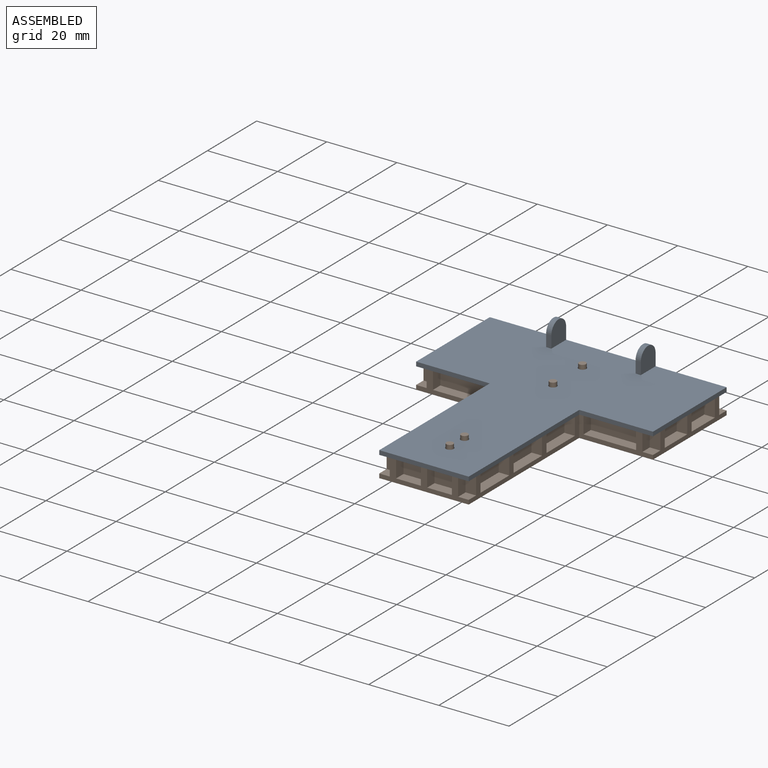
[diagram: assembled view]
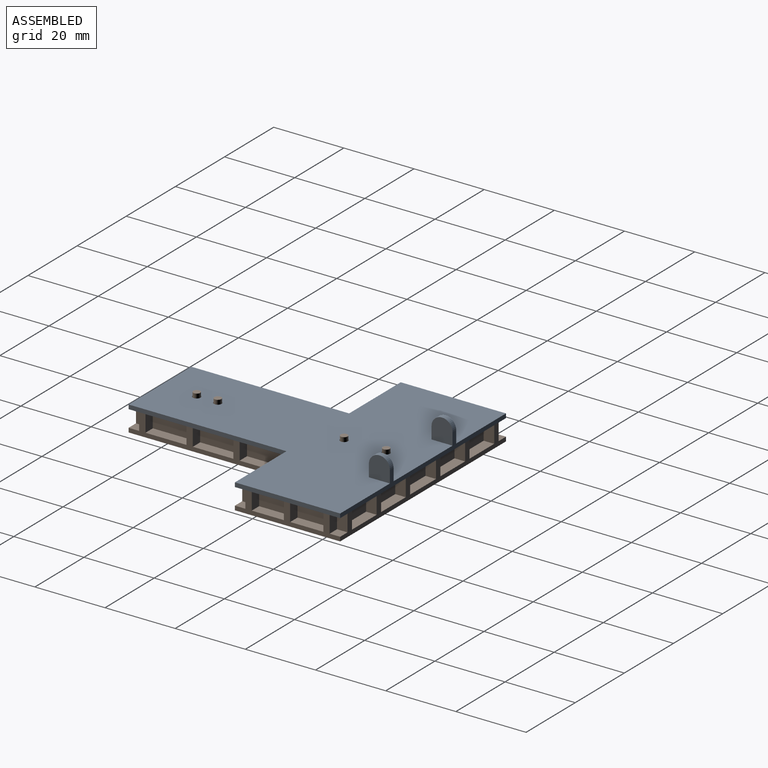
[diagram: assembled view, second angle]
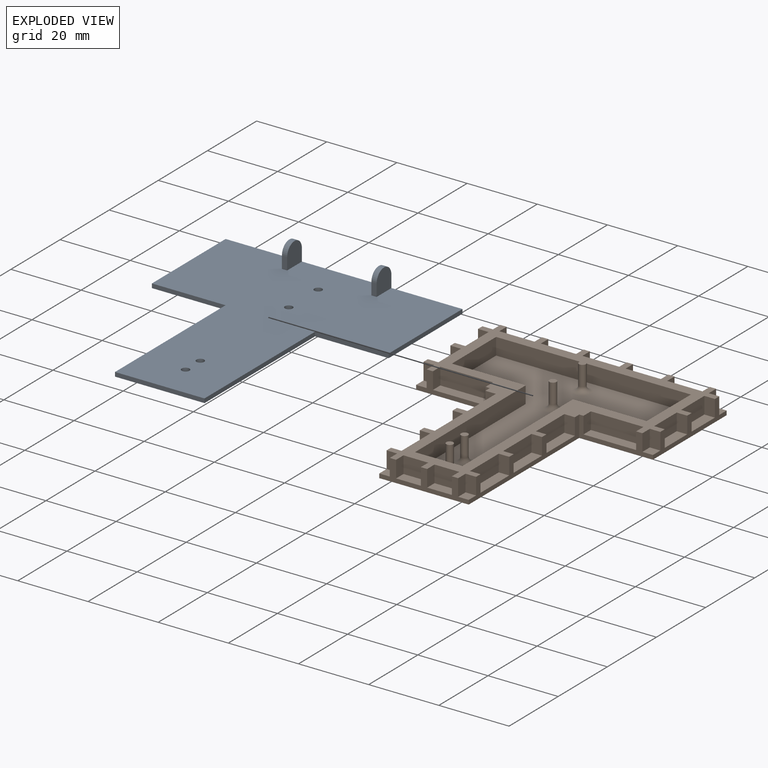
[diagram: exploded view]
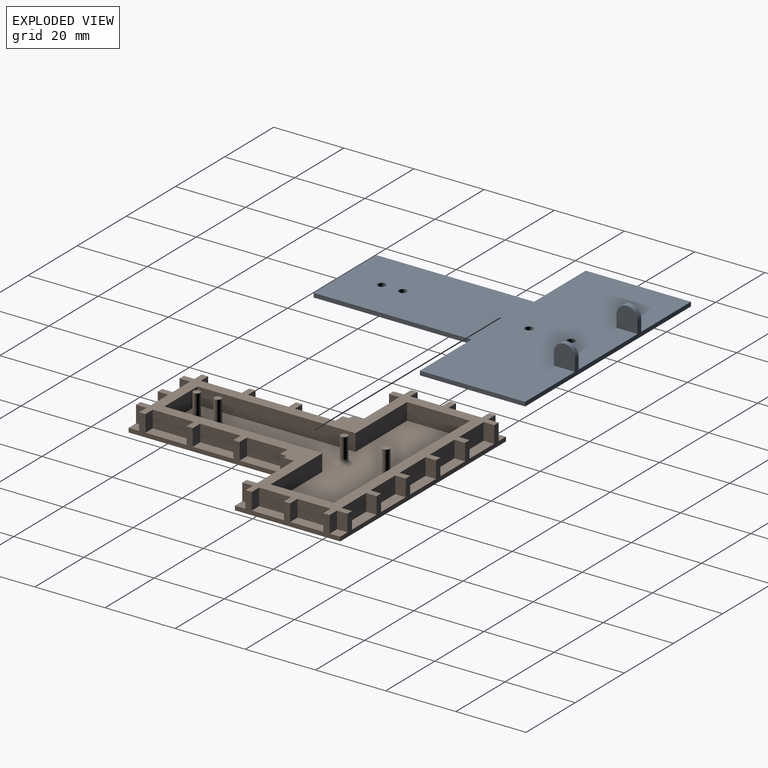
[diagram: exploded view, second angle]
ASSEMBLY  parts=2 mates=3
PART A: 22 faces, bbox 67.5x75x7.7 mm
  f0: plane 75x67.5mm, normal (0,0,1), area 3139.3mm2, adj f1,f2,f3,f4,f5,f6,f7,f8
  f1: plane 25.5x1.2mm, normal (0,-1,0), area 30.6mm2, adj f0,f2,f8,f9
  f2: plane 45x1.2mm, normal (1,0,0), area 54mm2, adj f0,f1,f3,f9
  f3: plane 21x1.2mm, normal (0,-1,0), area 25.2mm2, adj f0,f2,f4,f9
  f4: plane 30x1.2mm, normal (1,0,0), area 36mm2, adj f0,f3,f5,f9
  f5: plane 67.5x4.65mm, normal (0,1,0), area 91.3mm2, adj f0,f4,f6,f9,f10,f12,f13,f14
  f6: plane 30x1.2mm, normal (-1,0,0), area 36mm2, adj f0,f5,f7,f9
  f7: plane 21x1.2mm, normal (0,-1,0), area 25.2mm2, adj f0,f6,f8,f9
  f8: plane 45x1.2mm, normal (-1,0,0), area 54mm2, adj f0,f1,f7,f9
  f9: plane 75x67.5mm, normal (0,0,-1), area 3157.3mm2, adj f1,f2,f3,f4,f5,f6,f7,f8
  f10: cylinder r=3mm len=6mm, axis (-1,0,0), area 14.1mm2, adj f5,f11,f12,f13
  f11: plane 3.45x1.5mm, normal (0,-1,0), area 5.2mm2, adj f0,f10,f12,f13
  f12: plane 6.45x6mm, normal (1,0,0), area 34.8mm2, adj f0,f5,f10,f11
  f13: plane 6.45x6mm, normal (-1,0,0), area 34.8mm2, adj f0,f5,f10,f11
  f14: cylinder r=3mm len=6mm, axis (1,0,0), area 14.1mm2, adj f5,f15,f16,f17
  f15: plane 3.45x1.5mm, normal (0,-1,0), area 5.2mm2, adj f0,f14,f16,f17
  f16: plane 6.45x6mm, normal (-1,0,0), area 34.8mm2, adj f0,f5,f14,f15
  f17: plane 6.45x6mm, normal (1,0,0), area 34.8mm2, adj f0,f5,f14,f15
  f18: cylinder r=1.1mm len=2.2mm, axis (0,0,1), area 8.3mm2, adj f0,f9
  f19: cylinder r=1.1mm len=2.2mm, axis (0,0,1), area 8.3mm2, adj f0,f9
  f20: cylinder r=1.1mm len=2.2mm, axis (0,0,1), area 8.3mm2, adj f0,f9
  f21: cylinder r=1.1mm len=2.2mm, axis (0,0,1), area 8.3mm2, adj f0,f9
PART B: 125 faces, bbox 67.5x75x8.4 mm
  f0: plane 75x67.5mm, normal (0,0,1), area 907.2mm2, adj f1,f2,f3,f4,f5,f6,f7,f8
  f1: plane 25.5x6mm, normal (0,-1,0), area 56.5mm2, adj f0,f2,f8,f9,f10,f12,f13,f14
  f2: plane 45x6mm, normal (1,0,0), area 88.6mm2, adj f0,f1,f3,f9,f18,f20,f21,f22
  f3: plane 21x6mm, normal (0,-1,0), area 39.6mm2, adj f0,f2,f4,f9,f30,f32,f33,f89
  f4: plane 30x6mm, normal (1,0,0), area 61.9mm2, adj f0,f3,f5,f9,f34,f35,f37,f38
  f5: plane 67.5x6mm, normal (0,1,0), area 132.8mm2, adj f0,f4,f6,f9,f42,f43,f45,f46
  f6: plane 30x6mm, normal (-1,0,0), area 61.9mm2, adj f0,f5,f7,f9,f62,f63,f65,f66
  f7: plane 21x6mm, normal (0,-1,0), area 39.6mm2, adj f0,f6,f8,f9,f70,f72,f73,f98
  f8: plane 45x6mm, normal (-1,0,0), area 88.6mm2, adj f0,f1,f7,f9,f74,f76,f77,f78
  f9: plane 75x67.5mm, normal (0,0,-1), area 3172.5mm2, adj f1,f2,f3,f4,f5,f6,f7,f8
  f10: plane 4.8x3mm, normal (-1,0,0), area 14.4mm2, adj f0,f1,f11,f13
  f11: plane 7.05x4.8mm, normal (0,-1,0), area 33.8mm2, adj f0,f10,f12,f13
  f12: plane 4.8x3mm, normal (1,0,0), area 14.4mm2, adj f0,f1,f11,f13
  f13: plane 7.05x3mm, normal (0,0,1), area 21.1mm2, adj f1,f10,f11,f12
  f14: plane 4.8x3mm, normal (1,0,0), area 14.4mm2, adj f0,f1,f15,f17
  f15: plane 7.05x4.8mm, normal (0,-1,0), area 33.8mm2, adj f0,f14,f16,f17
  f16: plane 4.8x3mm, normal (-1,0,0), area 14.4mm2, adj f0,f1,f15,f17
  f17: plane 7.05x3mm, normal (0,0,1), area 21.1mm2, adj f1,f14,f15,f16
  f18: plane 4.8x3mm, normal (0,1,0), area 14.4mm2, adj f0,f2,f19,f21
  f19: plane 11.7x4.8mm, normal (1,0,0), area 56.2mm2, adj f0,f18,f20,f21
  f20: plane 4.8x3mm, normal (0,-1,0), area 14.4mm2, adj f0,f2,f19,f21
  f21: plane 11.7x3mm, normal (0,0,1), area 35.1mm2, adj f2,f18,f19,f20
  f22: plane 4.8x3mm, normal (0,1,0), area 14.4mm2, adj f0,f2,f23,f25
  f23: plane 11.55x4.8mm, normal (1,0,0), area 55.4mm2, adj f0,f22,f24,f25
  f24: plane 4.8x3mm, normal (0,-1,0), area 14.4mm2, adj f0,f2,f23,f25
  f25: plane 11.55x3mm, normal (0,0,1), area 34.6mm2, adj f2,f22,f23,f24
  f26: plane 4.8x3mm, normal (0,1,0), area 14.4mm2, adj f0,f2,f27,f29
  f27: plane 11.55x4.8mm, normal (1,0,0), area 55.4mm2, adj f0,f26,f28,f29
  f28: plane 4.8x3mm, normal (0,-1,0), area 14.4mm2, adj f0,f2,f27,f29
  f29: plane 11.55x3mm, normal (0,0,1), area 34.6mm2, adj f2,f26,f27,f28
  f30: plane 4.8x3mm, normal (1,0,0), area 14.4mm2, adj f0,f3,f31,f33
  f31: plane 15x4.8mm, normal (0,-1,0), area 72mm2, adj f0,f30,f32,f33
  f32: plane 4.8x3mm, normal (-1,0,0), area 14.4mm2, adj f0,f3,f31,f33
  f33: plane 15x3mm, normal (0,0,1), area 45mm2, adj f3,f30,f31,f32
  f34: plane 4.8x3mm, normal (0,-1,0), area 14.4mm2, adj f0,f4,f36,f37
  f35: plane 4.8x3mm, normal (0,1,0), area 14.4mm2, adj f0,f4,f36,f37
  f36: plane 9.15x4.8mm, normal (1,0,0), area 43.9mm2, adj f0,f34,f35,f37
  f37: plane 9.15x3mm, normal (0,0,1), area 27.5mm2, adj f4,f34,f35,f36
  f38: plane 4.8x3mm, normal (0,-1,0), area 14.4mm2, adj f0,f4,f40,f41
  f39: plane 4.8x3mm, normal (0,1,0), area 14.4mm2, adj f0,f4,f40,f41
  f40: plane 9.45x4.8mm, normal (1,0,0), area 45.4mm2, adj f0,f38,f39,f41
  f41: plane 9.45x3mm, normal (0,0,1), area 28.4mm2, adj f4,f38,f39,f40
  f42: plane 4.8x3mm, normal (-1,0,0), area 14.4mm2, adj f0,f5,f44,f45
  f43: plane 4.8x3mm, normal (1,0,0), area 14.4mm2, adj f0,f5,f44,f45
  f44: plane 10.05x4.8mm, normal (0,1,0), area 48.2mm2, adj f0,f42,f43,f45
  f45: plane 10.05x3mm, normal (0,0,1), area 30.2mm2, adj f5,f42,f43,f44
  f46: plane 4.8x3mm, normal (-1,0,0), area 14.4mm2, adj f0,f5,f48,f49
  f47: plane 4.8x3mm, normal (1,0,0), area 14.4mm2, adj f0,f5,f48,f49
  f48: plane 10.05x4.8mm, normal (0,1,0), area 48.2mm2, adj f0,f46,f47,f49
  f49: plane 10.05x3mm, normal (0,0,1), area 30.2mm2, adj f5,f46,f47,f48
  f50: plane 4.8x3mm, normal (1,0,0), area 14.4mm2, adj f0,f5,f51,f52
  f51: plane 10.5x4.8mm, normal (0,1,0), area 50.4mm2, adj f0,f50,f52,f53
  f52: plane 10.5x3mm, normal (0,0,1), area 31.5mm2, adj f5,f50,f51,f53
  f53: plane 4.8x3mm, normal (-1,0,0), area 14.4mm2, adj f0,f5,f51,f52
  f54: plane 4.8x3mm, normal (1,0,0), area 14.4mm2, adj f0,f5,f56,f57
  f55: plane 4.8x3mm, normal (-1,0,0), area 14.4mm2, adj f0,f5,f56,f57
  f56: plane 10.05x4.8mm, normal (0,1,0), area 48.2mm2, adj f0,f54,f55,f57
  f57: plane 10.05x3mm, normal (0,0,1), area 30.2mm2, adj f5,f54,f55,f56
  f58: plane 4.8x3mm, normal (1,0,0), area 14.4mm2, adj f0,f5,f60,f61
  f59: plane 4.8x3mm, normal (-1,0,0), area 14.4mm2, adj f0,f5,f60,f61
  f60: plane 10.05x4.8mm, normal (0,1,0), area 48.2mm2, adj f0,f58,f59,f61
  f61: plane 10.05x3mm, normal (0,0,1), area 30.2mm2, adj f5,f58,f59,f60
  f62: plane 4.8x3mm, normal (0,-1,0), area 14.4mm2, adj f0,f6,f64,f65
  f63: plane 4.8x3mm, normal (0,1,0), area 14.4mm2, adj f0,f6,f64,f65
  f64: plane 9.45x4.8mm, normal (-1,0,0), area 45.4mm2, adj f0,f62,f63,f65
  f65: plane 9.45x3mm, normal (0,0,1), area 28.4mm2, adj f6,f62,f63,f64
  f66: plane 4.8x3mm, normal (0,-1,0), area 14.4mm2, adj f0,f6,f68,f69
  f67: plane 4.8x3mm, normal (0,1,0), area 14.4mm2, adj f0,f6,f68,f69
  f68: plane 9.15x4.8mm, normal (-1,0,0), area 43.9mm2, adj f0,f66,f67,f69
  f69: plane 9.15x3mm, normal (0,0,1), area 27.5mm2, adj f6,f66,f67,f68
  f70: plane 4.8x3mm, normal (-1,0,0), area 14.4mm2, adj f0,f7,f71,f73
  f71: plane 15x4.8mm, normal (0,-1,0), area 72mm2, adj f0,f70,f72,f73
  f72: plane 4.8x3mm, normal (1,0,0), area 14.4mm2, adj f0,f7,f71,f73
  f73: plane 15x3mm, normal (0,0,1), area 45mm2, adj f7,f70,f71,f72
  f74: plane 4.8x3mm, normal (0,1,0), area 14.4mm2, adj f0,f8,f75,f77
  f75: plane 11.55x4.8mm, normal (-1,0,0), area 55.4mm2, adj f0,f74,f76,f77
  f76: plane 4.8x3mm, normal (0,-1,0), area 14.4mm2, adj f0,f8,f75,f77
  f77: plane 11.55x3mm, normal (0,0,1), area 34.6mm2, adj f8,f74,f75,f76
  f78: plane 4.8x3mm, normal (0,1,0), area 14.4mm2, adj f0,f8,f79,f81
  f79: plane 11.55x4.8mm, normal (-1,0,0), area 55.4mm2, adj f0,f78,f80,f81
  f80: plane 4.8x3mm, normal (0,-1,0), area 14.4mm2, adj f0,f8,f79,f81
  f81: plane 11.55x3mm, normal (0,0,1), area 34.6mm2, adj f8,f78,f79,f80
  f82: plane 4.8x3mm, normal (0,1,0), area 14.4mm2, adj f0,f8,f83,f85
  f83: plane 11.7x4.8mm, normal (-1,0,0), area 56.2mm2, adj f0,f82,f84,f85
  f84: plane 4.8x3mm, normal (0,-1,0), area 14.4mm2, adj f0,f8,f83,f85
  f85: plane 11.7x3mm, normal (0,0,1), area 35.1mm2, adj f8,f82,f83,f84
  f86: plane 4.8x3mm, normal (1,0,0), area 14.4mm2, adj f0,f1,f87,f88
  f87: plane 4.8x3mm, normal (0,-1,0), area 14.4mm2, adj f0,f2,f86,f88
  f88: plane 3x3mm, normal (0,0,1), area 9mm2, adj f1,f2,f86,f87
  f89: plane 4.8x3mm, normal (1,0,0), area 14.4mm2, adj f0,f3,f90,f91
  f90: plane 4.8x3mm, normal (0,-1,0), area 14.4mm2, adj f0,f4,f89,f91
  f91: plane 3x3mm, normal (0,0,1), area 9mm2, adj f3,f4,f89,f90
  f92: plane 4.8x3mm, normal (-1,0,0), area 14.4mm2, adj f0,f5,f93,f94
  f93: plane 4.8x3mm, normal (0,1,0), area 14.4mm2, adj f0,f6,f92,f94
  f94: plane 3x3mm, normal (0,0,1), area 9mm2, adj f5,f6,f92,f93
  f95: plane 4.8x3mm, normal (1,0,0), area 14.4mm2, adj f0,f5,f96,f97
  f96: plane 4.8x3mm, normal (0,1,0), area 14.4mm2, adj f0,f4,f95,f97
  f97: plane 3x3mm, normal (0,0,1), area 9mm2, adj f4,f5,f95,f96
  f98: plane 4.8x3mm, normal (-1,0,0), area 14.4mm2, adj f0,f7,f99,f100
  f99: plane 4.8x3mm, normal (0,-1,0), area 14.4mm2, adj f0,f6,f98,f100
  f100: plane 3x3mm, normal (0,0,1), area 9mm2, adj f6,f7,f98,f99
  f101: plane 4.8x3mm, normal (-1,0,0), area 14.4mm2, adj f0,f1,f102,f103
  f102: plane 4.8x3mm, normal (0,-1,0), area 14.4mm2, adj f0,f8,f101,f103
  f103: plane 3x3mm, normal (0,0,1), area 9mm2, adj f1,f8,f101,f102
  f104: plane 55.5x4.8mm, normal (0,-1,0), area 266.4mm2, adj f0,f105,f111,f112
  f105: plane 18x4.8mm, normal (1,0,0), area 86.4mm2, adj f0,f104,f106,f112
  f106: plane 21x4.8mm, normal (0,1,0), area 100.8mm2, adj f0,f105,f107,f112
  f107: plane 45x4.8mm, normal (1,0,0), area 216mm2, adj f0,f106,f108,f112
  f108: plane 13.5x4.8mm, normal (0,1,0), area 64.8mm2, adj f0,f107,f109,f112
  f109: plane 45x4.8mm, normal (-1,0,0), area 216mm2, adj f0,f108,f110,f112
  f110: plane 21x4.8mm, normal (0,1,0), area 100.8mm2, adj f0,f109,f111,f112
  f111: plane 18x4.8mm, normal (-1,0,0), area 86.4mm2, adj f0,f104,f110,f112
  f112: plane 63x55.5mm, normal (0,0,1), area 1528mm2, adj f104,f105,f106,f107,f108,f109,f110,f111
  f113: cylinder r=1mm len=5.7mm, axis (0,0,-1), area 35.8mm2, adj f114,f124
  f114: plane 2x2mm, normal (0,0,1), area 3.1mm2, adj f113
  f115: cylinder r=1mm len=5.7mm, axis (0,0,-1), area 35.8mm2, adj f116,f123
  f116: plane 2x2mm, normal (0,0,1), area 3.1mm2, adj f115
  f117: cylinder r=1mm len=5.7mm, axis (0,0,-1), area 35.8mm2, adj f118,f122
  f118: plane 2x2mm, normal (0,0,1), area 3.1mm2, adj f117
  f119: cylinder r=1mm len=5.7mm, axis (0,0,-1), area 35.8mm2, adj f120,f121
  f120: plane 2x2mm, normal (0,0,1), area 3.1mm2, adj f119
  f121: torus R=2.5mm, axis (0,0,1), area 22.9mm2, adj f112,f119
  f122: torus R=2.5mm, axis (0,0,1), area 22.9mm2, adj f112,f117
  f123: torus R=2.5mm, axis (0,0,1), area 22.9mm2, adj f112,f115
  f124: torus R=2.5mm, axis (0,0,1), area 22.9mm2, adj f112,f113
PLACE A t=(0,27.14,4)mm
PLACE B t=(0,-0.36,-2)mm
MATE planar A.f9 <-> B.f0  axis (0,0,-1) through (0,46.12,4)mm
MATE planar A.f6 <-> B.f6  axis (-1,0,0) through (-33.75,59.64,4.6)mm
MATE planar B.f5 <-> A.f5  axis (0,1,0) through (0,74.64,-0.8)mm
